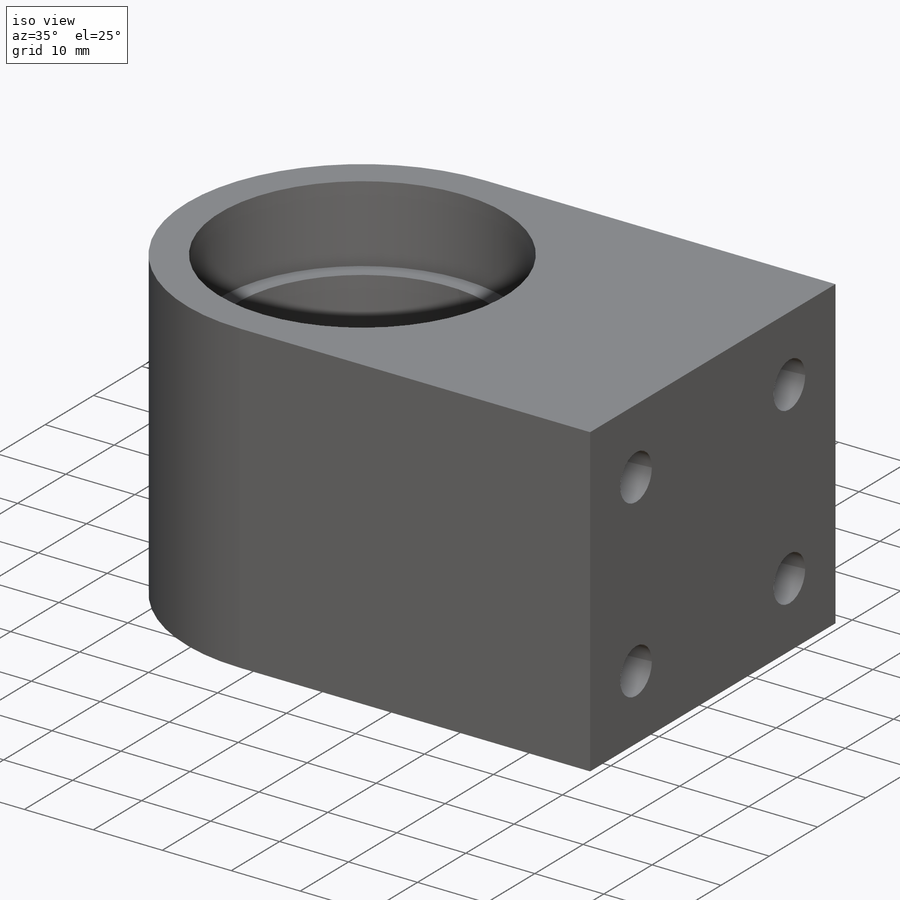
[diagram: iso view]
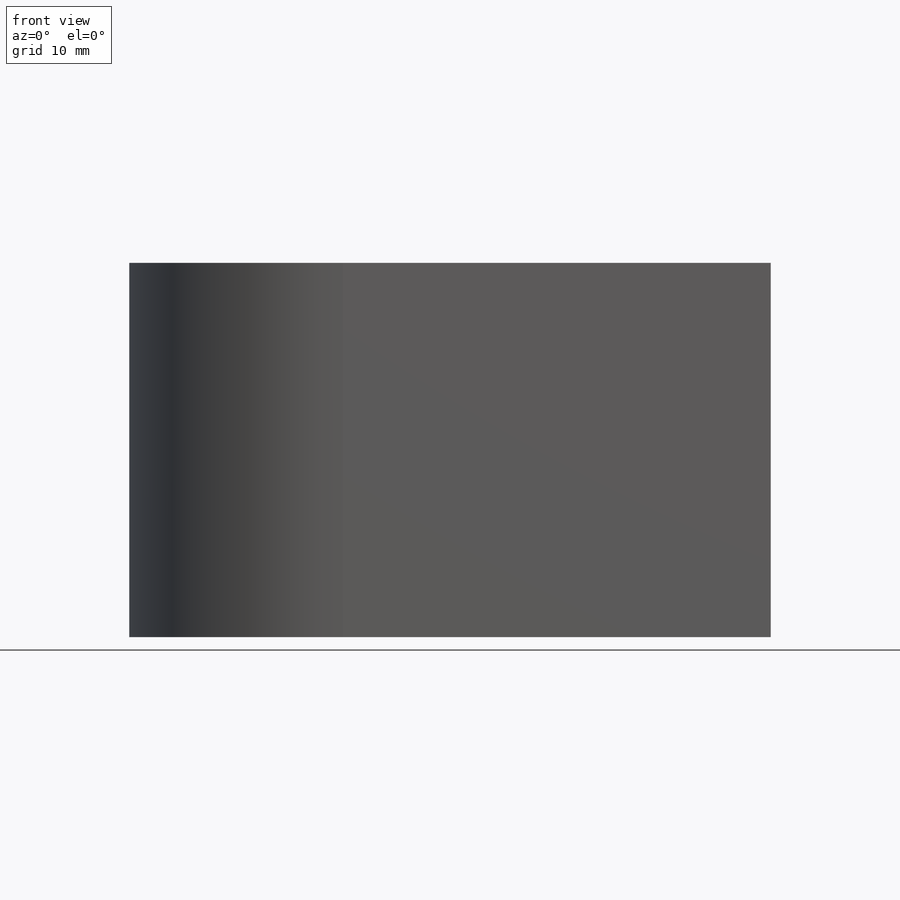
[diagram: front view]
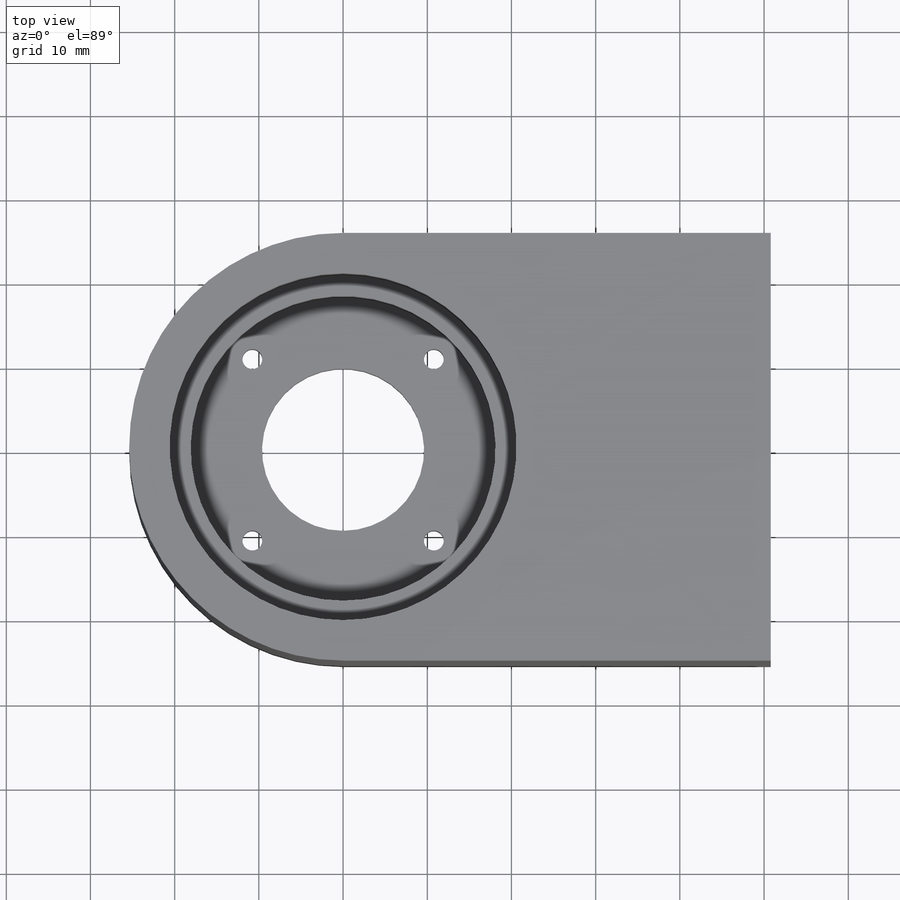
[diagram: top view]
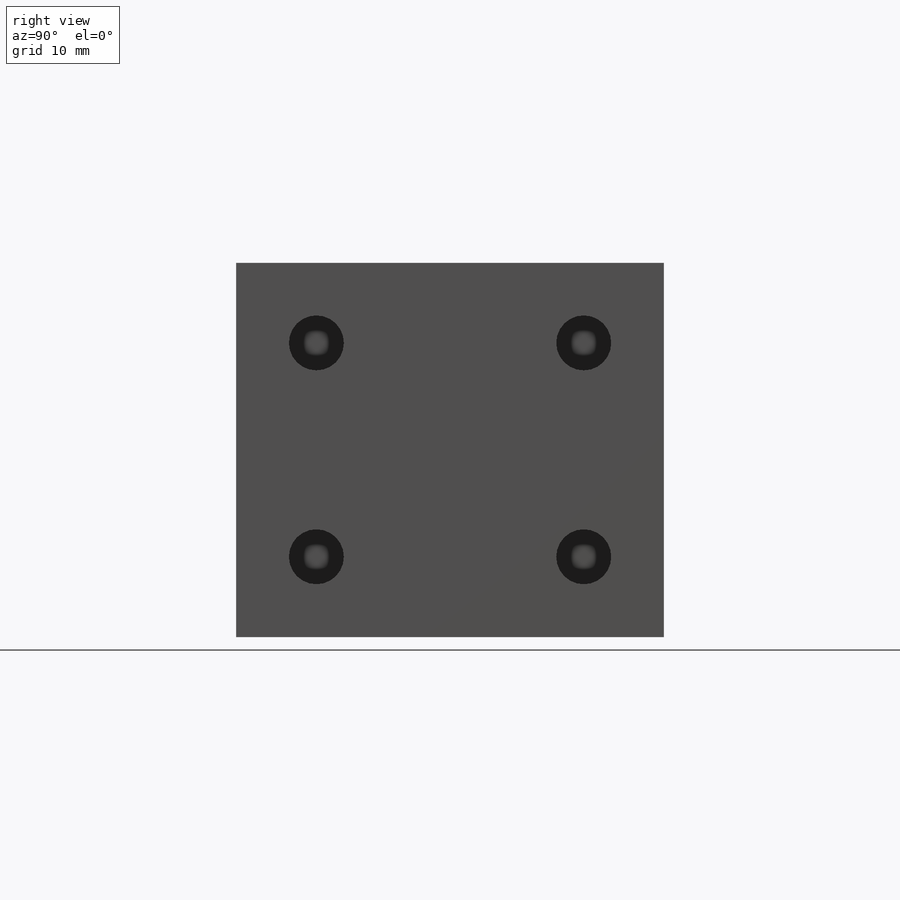
[diagram: right view]
SOLIDWORKS PART (.sldprt)
format: sldprt  version: not decoded by parser v0  size: 318,976 bytes
history: native  units: mm
features: sketch x9, cut_extrude x8, material x1, extrude x1, pattern_circular x1 (+11 scaffold rows collapsed)
feature tree (31):
  scaffold x11  (default folders/planes/origin — collapsed)
  material  "6061-T6 (SS)"
  sketch  "Sketch1"  dims[D1=25.4mm D2=50.8mm D3=76.2mm D4=25.4mm]
  extrude  "Boss-Extrude1"  Depth=44.45mm
  sketch  "Sketch2"  dims[D1=41.1988mm]
  cut_extrude  "Cut-Extrude1"  Depth=11.1125mm
  sketch  "Sketch3"  dims[D1=2.54mm D2=76.2mm]
  cut_extrude  "Cut-Extrude2"  Depth=9.525mm
  sketch  "Sketch4"  dims[D1=19.2532mm]
  cut_extrude  "Cut-Extrude3"  [1 undecoded]
  sketch  "Sketch5"  dims[D1=38.1mm]
  cut_extrude  "Cut-Extrude4"  Depth=6.35mm
  sketch  "Sketch6"  dims[D1=22.606mm]
  cut_extrude  "Cut-Extrude5"  Depth=1.397mm
  sketch  "Sketch7"  dims[D3=6.5278mm D1=9.525mm D2=9.525mm]
  cut_extrude  "Cut-Extrude6"  Depth=19.05mm
  sketch  "Sketch8"  dims[c1.D1=30.48mm c1.D3=2.3622mm c1.D2=~11.481219mm c2.D2=45.0deg]
  cut_extrude  "Cut-Extrude7"  [1 undecoded]
  pattern_circular  "CirPattern1"  Count=4 Angle=90deg
  sketch  "Sketch9"  dims[D1=76.2mm D2=12.7mm D3=38.1mm]
  cut_extrude  "Cut-Extrude8"  [1 undecoded]
decode coverage: 16 of 19 modeling features carry decoded parameters
note: ~ marks probable driven/reference dimensions
note: 3 parameter values undecoded
summary: no parameter record found for 3 features
note: suppression state not decoded; provenance and decode notes live in map.json
